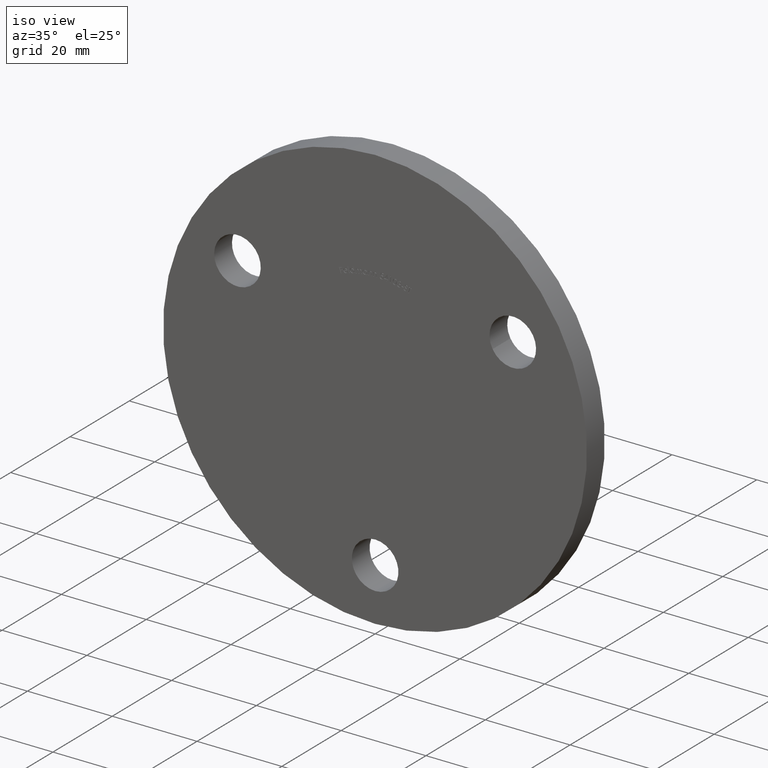
[diagram: clean part render]
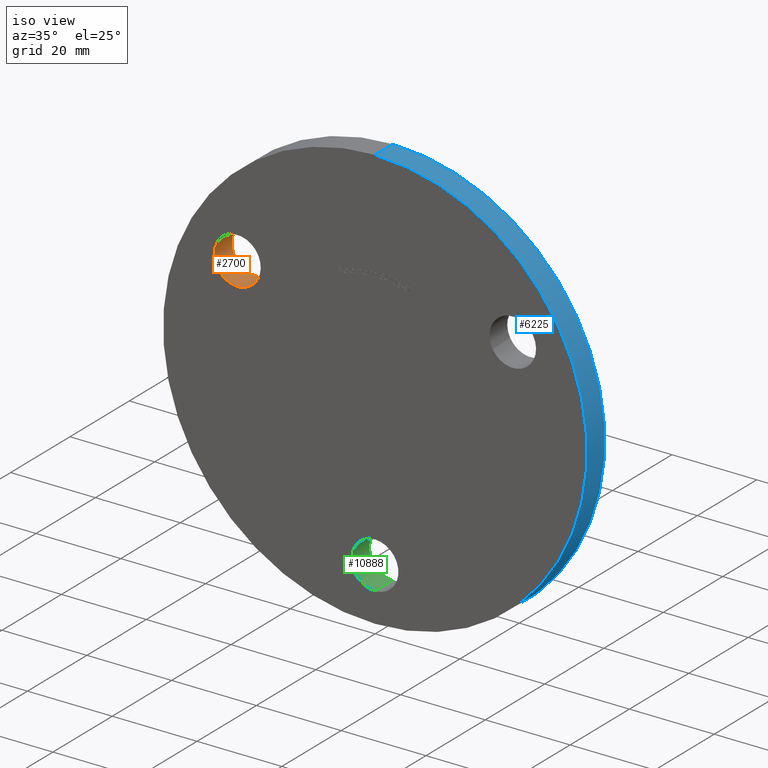
[diagram: same view with three faces highlighted in distinct colors, each labeled with its STEP entity id]
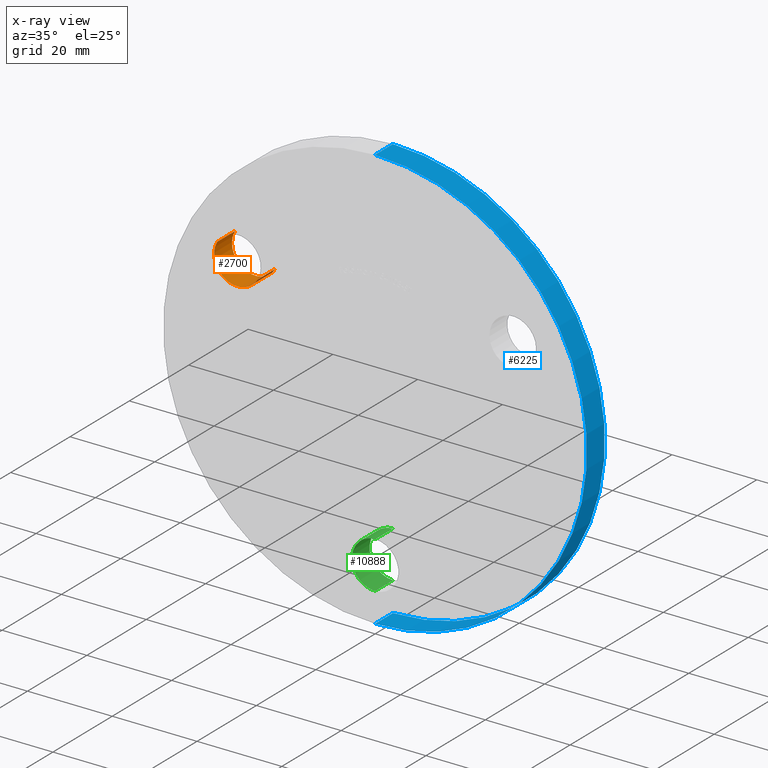
[diagram: x-ray of the same camera — body ghosted, the three highlighted faces saturated]
A machine part, iso view with three faces highlighted in distinct colors.
The next image is the same camera in x-ray (body ghosted, the three faces saturated) — at least one of them is partly hidden behind the body in this view.
Their STEP definitions:

[orange] entity #2700 — the highlighted cylindrical surface (edge-blend (fillet) strip) has radius 5.5 mm, axis along (0, 1, 0).
#12 = EDGE_CURVE ( 'NONE', #8793, #1931, #4560, .T. ) ;
#504 = CARTESIAN_POINT ( 'NONE',  ( -27.71281292110218400, 0.0000000000000000000, 15.99999999999974400 ) ) ;
#692 = ORIENTED_EDGE ( 'NONE', *, *, #7211, .F. ) ;
#925 = DIRECTION ( 'NONE',  ( 0.0000000000000000000, 1.000000000000000000, 0.0000000000000000000 ) ) ;
#1442 = ORIENTED_EDGE ( 'NONE', *, *, #11200, .F. ) ;
#1835 = DIRECTION ( 'NONE',  ( 0.8660254037844433700, 0.0000000000000000000, -0.4999999999999919500 ) ) ;
#1931 = VERTEX_POINT ( 'NONE', #8542 ) ;
#2120 = VECTOR ( 'NONE', #4028, 1000.000000000000000 ) ;
#2144 = VECTOR ( 'NONE', #5828, 1000.000000000000000 ) ;
#2182 = VERTEX_POINT ( 'NONE', #3977 ) ;
#2700 = ADVANCED_FACE ( 'NONE', ( #10008 ), #3345, .F. ) ;
#2812 = CARTESIAN_POINT ( 'NONE',  ( -32.47595264191662100, 6.000000000000000000, 18.74999999999969800 ) ) ;
#2887 = CARTESIAN_POINT ( 'NONE',  ( -32.47595264191662100, 0.0000000000000000000, 18.74999999999969800 ) ) ;
#3345 = CYLINDRICAL_SURFACE ( 'NONE', #9162, 5.499999999999996400 ) ;
#3605 = EDGE_LOOP ( 'NONE', ( #1442, #692, #7448, #5660 ) ) ;
#3977 = CARTESIAN_POINT ( 'NONE',  ( -37.23909236273105700, 0.0000000000000000000, 21.49999999999965200 ) ) ;
#4028 = DIRECTION ( 'NONE',  ( 0.0000000000000000000, 1.000000000000000000, 0.0000000000000000000 ) ) ;
#4441 = AXIS2_PLACEMENT_3D ( 'NONE', #2812, #6385, #9076 ) ;
#4560 = LINE ( 'NONE', #504, #2144 ) ;
#5660 = ORIENTED_EDGE ( 'NONE', *, *, #8795, .T. ) ;
#5676 = CIRCLE ( 'NONE', #4441, 5.499999999999996400 ) ;
#5723 = DIRECTION ( 'NONE',  ( 0.8660254037844433700, 0.0000000000000000000, -0.4999999999999919500 ) ) ;
#5828 = DIRECTION ( 'NONE',  ( 0.0000000000000000000, 1.000000000000000000, 0.0000000000000000000 ) ) ;
#6312 = CARTESIAN_POINT ( 'NONE',  ( -27.71281292110218400, 0.0000000000000000000, 15.99999999999974400 ) ) ;
#6385 = DIRECTION ( 'NONE',  ( 0.0000000000000000000, 1.000000000000000000, 0.0000000000000000000 ) ) ;
#7208 = LINE ( 'NONE', #7639, #2120 ) ;
#7211 = EDGE_CURVE ( 'NONE', #8793, #2182, #10774, .T. ) ;
#7448 = ORIENTED_EDGE ( 'NONE', *, *, #12, .T. ) ;
#7639 = CARTESIAN_POINT ( 'NONE',  ( -37.23909236273105700, 0.0000000000000000000, 21.49999999999965200 ) ) ;
#8542 = CARTESIAN_POINT ( 'NONE',  ( -27.71281292110218400, 6.000000000000000000, 15.99999999999974400 ) ) ;
#8793 = VERTEX_POINT ( 'NONE', #6312 ) ;
#8795 = EDGE_CURVE ( 'NONE', #1931, #8830, #5676, .T. ) ;
#8830 = VERTEX_POINT ( 'NONE', #10858 ) ;
#9076 = DIRECTION ( 'NONE',  ( 0.8660254037844433700, 0.0000000000000000000, -0.4999999999999919500 ) ) ;
#9162 = AXIS2_PLACEMENT_3D ( 'NONE', #10172, #11066, #5723 ) ;
#10008 = FACE_OUTER_BOUND ( 'NONE', #3605, .T. ) ;
#10172 = CARTESIAN_POINT ( 'NONE',  ( -32.47595264191662100, 0.0000000000000000000, 18.74999999999969800 ) ) ;
#10774 = CIRCLE ( 'NONE', #11447, 5.499999999999996400 ) ;
#10858 = CARTESIAN_POINT ( 'NONE',  ( -37.23909236273105700, 6.000000000000000000, 21.49999999999965200 ) ) ;
#11066 = DIRECTION ( 'NONE',  ( 0.0000000000000000000, 1.000000000000000000, 0.0000000000000000000 ) ) ;
#11200 = EDGE_CURVE ( 'NONE', #2182, #8830, #7208, .T. ) ;
#11447 = AXIS2_PLACEMENT_3D ( 'NONE', #2887, #925, #1835 ) ;

[blue] entity #6225 — the highlighted cylindrical surface (partial cylindrical patch) has radius 50 mm, axis along (-0, -1, -0).
#609 = CARTESIAN_POINT ( 'NONE',  ( 0.0000000000000000000, 0.0000000000000000000, -50.00000000000000000 ) ) ;
#768 = CIRCLE ( 'NONE', #4658, 50.00000000000000000 ) ;
#1144 = CARTESIAN_POINT ( 'NONE',  ( 6.123233995736766100E-015, 0.0000000000000000000, 50.00000000000000000 ) ) ;
#1565 = DIRECTION ( 'NONE',  ( 0.0000000000000000000, 0.0000000000000000000, 1.000000000000000000 ) ) ;
#1829 = EDGE_LOOP ( 'NONE', ( #2734, #7395, #10113, #4150 ) ) ;
#2293 = DIRECTION ( 'NONE',  ( 0.0000000000000000000, 0.0000000000000000000, 1.000000000000000000 ) ) ;
#2313 = EDGE_CURVE ( 'NONE', #3592, #6658, #5482, .T. ) ;
#2734 = ORIENTED_EDGE ( 'NONE', *, *, #2313, .F. ) ;
#2761 = CARTESIAN_POINT ( 'NONE',  ( 6.123233995736766100E-015, 6.000000000000000000, 50.00000000000000000 ) ) ;
#3017 = FACE_OUTER_BOUND ( 'NONE', #1829, .T. ) ;
#3592 = VERTEX_POINT ( 'NONE', #2761 ) ;
#3830 = LINE ( 'NONE', #5863, #4407 ) ;
#4150 = ORIENTED_EDGE ( 'NONE', *, *, #10091, .F. ) ;
#4178 = DIRECTION ( 'NONE',  ( -0.0000000000000000000, -1.000000000000000000, -0.0000000000000000000 ) ) ;
#4319 = CARTESIAN_POINT ( 'NONE',  ( 0.0000000000000000000, 6.000000000000000000, -50.00000000000000000 ) ) ;
#4407 = VECTOR ( 'NONE', #5217, 1000.000000000000000 ) ;
#4658 = AXIS2_PLACEMENT_3D ( 'NONE', #11263, #7685, #2293 ) ;
#5136 = CARTESIAN_POINT ( 'NONE',  ( 0.0000000000000000000, 6.000000000000000000, -50.00000000000000000 ) ) ;
#5217 = DIRECTION ( 'NONE',  ( -0.0000000000000000000, -1.000000000000000000, -0.0000000000000000000 ) ) ;
#5482 = CIRCLE ( 'NONE', #9234, 50.00000000000000000 ) ;
#5789 = VERTEX_POINT ( 'NONE', #1144 ) ;
#5863 = CARTESIAN_POINT ( 'NONE',  ( 6.123233995736766100E-015, 6.000000000000000000, 50.00000000000000000 ) ) ;
#5986 = CYLINDRICAL_SURFACE ( 'NONE', #6286, 50.00000000000000000 ) ;
#6225 = ADVANCED_FACE ( 'NONE', ( #3017 ), #5986, .T. ) ;
#6286 = AXIS2_PLACEMENT_3D ( 'NONE', #6532, #9223, #7169 ) ;
#6323 = VERTEX_POINT ( 'NONE', #609 ) ;
#6532 = CARTESIAN_POINT ( 'NONE',  ( 0.0000000000000000000, 6.000000000000000000, 0.0000000000000000000 ) ) ;
#6580 = EDGE_CURVE ( 'NONE', #5789, #6323, #768, .T. ) ;
#6658 = VERTEX_POINT ( 'NONE', #4319 ) ;
#7169 = DIRECTION ( 'NONE',  ( 0.0000000000000000000, 0.0000000000000000000, -1.000000000000000000 ) ) ;
#7395 = ORIENTED_EDGE ( 'NONE', *, *, #10121, .T. ) ;
#7635 = VECTOR ( 'NONE', #4178, 1000.000000000000000 ) ;
#7685 = DIRECTION ( 'NONE',  ( 0.0000000000000000000, 1.000000000000000000, 0.0000000000000000000 ) ) ;
#8801 = CARTESIAN_POINT ( 'NONE',  ( 0.0000000000000000000, 6.000000000000000000, 0.0000000000000000000 ) ) ;
#9223 = DIRECTION ( 'NONE',  ( -0.0000000000000000000, -1.000000000000000000, -0.0000000000000000000 ) ) ;
#9234 = AXIS2_PLACEMENT_3D ( 'NONE', #8801, #9704, #1565 ) ;
#9704 = DIRECTION ( 'NONE',  ( 0.0000000000000000000, 1.000000000000000000, 0.0000000000000000000 ) ) ;
#10091 = EDGE_CURVE ( 'NONE', #6658, #6323, #10337, .T. ) ;
#10113 = ORIENTED_EDGE ( 'NONE', *, *, #6580, .T. ) ;
#10121 = EDGE_CURVE ( 'NONE', #3592, #5789, #3830, .T. ) ;
#10337 = LINE ( 'NONE', #5136, #7635 ) ;
#11263 = CARTESIAN_POINT ( 'NONE',  ( 0.0000000000000000000, 0.0000000000000000000, 0.0000000000000000000 ) ) ;

[green] entity #10888 — the highlighted cylindrical surface (edge-blend (fillet) strip) has radius 5.5 mm, axis along (-0, 1, -0).
#33 = DIRECTION ( 'NONE',  ( -0.0000000000000000000, 1.000000000000000000, -0.0000000000000000000 ) ) ;
#140 = DIRECTION ( 'NONE',  ( 0.0000000000000000000, 0.0000000000000000000, 1.000000000000000000 ) ) ;
#307 = VERTEX_POINT ( 'NONE', #6214 ) ;
#637 = DIRECTION ( 'NONE',  ( 0.0000000000000000000, 1.000000000000000000, 0.0000000000000000000 ) ) ;
#714 = CARTESIAN_POINT ( 'NONE',  ( 0.0000000000000000000, 6.000000000000000000, -37.50000000000000000 ) ) ;
#775 = EDGE_CURVE ( 'NONE', #307, #9859, #1832, .T. ) ;
#968 = DIRECTION ( 'NONE',  ( 0.0000000000000000000, 0.0000000000000000000, 1.000000000000000000 ) ) ;
#1221 = ORIENTED_EDGE ( 'NONE', *, *, #9105, .F. ) ;
#1426 = CARTESIAN_POINT ( 'NONE',  ( 0.0000000000000000000, 6.000000000000000000, -32.00000000000000000 ) ) ;
#1494 = AXIS2_PLACEMENT_3D ( 'NONE', #9927, #33, #140 ) ;
#1832 = LINE ( 'NONE', #11503, #3087 ) ;
#2582 = CIRCLE ( 'NONE', #5039, 5.499999999999998200 ) ;
#3087 = VECTOR ( 'NONE', #11620, 1000.000000000000000 ) ;
#3803 = CARTESIAN_POINT ( 'NONE',  ( 0.0000000000000000000, 0.0000000000000000000, -32.00000000000000000 ) ) ;
#3884 = CARTESIAN_POINT ( 'NONE',  ( 0.0000000000000000000, 0.0000000000000000000, -32.00000000000000000 ) ) ;
#3999 = VERTEX_POINT ( 'NONE', #1426 ) ;
#4584 = EDGE_LOOP ( 'NONE', ( #8316, #4651, #10415, #1221 ) ) ;
#4651 = ORIENTED_EDGE ( 'NONE', *, *, #775, .T. ) ;
#5039 = AXIS2_PLACEMENT_3D ( 'NONE', #714, #637, #7814 ) ;
#6214 = CARTESIAN_POINT ( 'NONE',  ( 6.735557395310443000E-016, 0.0000000000000000000, -43.00000000000000000 ) ) ;
#6516 = VECTOR ( 'NONE', #10891, 1000.000000000000000 ) ;
#6928 = CARTESIAN_POINT ( 'NONE',  ( 6.735557395310443000E-016, 6.000000000000000000, -43.00000000000000000 ) ) ;
#6933 = LINE ( 'NONE', #3884, #6516 ) ;
#7648 = EDGE_CURVE ( 'NONE', #9859, #3999, #2582, .T. ) ;
#7814 = DIRECTION ( 'NONE',  ( 0.0000000000000000000, 0.0000000000000000000, 1.000000000000000000 ) ) ;
#8316 = ORIENTED_EDGE ( 'NONE', *, *, #8354, .F. ) ;
#8327 = FACE_OUTER_BOUND ( 'NONE', #4584, .T. ) ;
#8354 = EDGE_CURVE ( 'NONE', #307, #9747, #9653, .T. ) ;
#9105 = EDGE_CURVE ( 'NONE', #9747, #3999, #6933, .T. ) ;
#9653 = CIRCLE ( 'NONE', #10613, 5.499999999999998200 ) ;
#9747 = VERTEX_POINT ( 'NONE', #3803 ) ;
#9859 = VERTEX_POINT ( 'NONE', #6928 ) ;
#9927 = CARTESIAN_POINT ( 'NONE',  ( 0.0000000000000000000, 0.0000000000000000000, -37.50000000000000000 ) ) ;
#10415 = ORIENTED_EDGE ( 'NONE', *, *, #7648, .T. ) ;
#10588 = CYLINDRICAL_SURFACE ( 'NONE', #1494, 5.499999999999998200 ) ;
#10613 = AXIS2_PLACEMENT_3D ( 'NONE', #10788, #10827, #968 ) ;
#10788 = CARTESIAN_POINT ( 'NONE',  ( 0.0000000000000000000, 0.0000000000000000000, -37.50000000000000000 ) ) ;
#10827 = DIRECTION ( 'NONE',  ( 0.0000000000000000000, 1.000000000000000000, 0.0000000000000000000 ) ) ;
#10888 = ADVANCED_FACE ( 'NONE', ( #8327 ), #10588, .F. ) ;
#10891 = DIRECTION ( 'NONE',  ( -0.0000000000000000000, 1.000000000000000000, -0.0000000000000000000 ) ) ;
#11503 = CARTESIAN_POINT ( 'NONE',  ( 6.735557395310441000E-016, 0.0000000000000000000, -43.00000000000000000 ) ) ;
#11620 = DIRECTION ( 'NONE',  ( -0.0000000000000000000, 1.000000000000000000, -0.0000000000000000000 ) ) ;